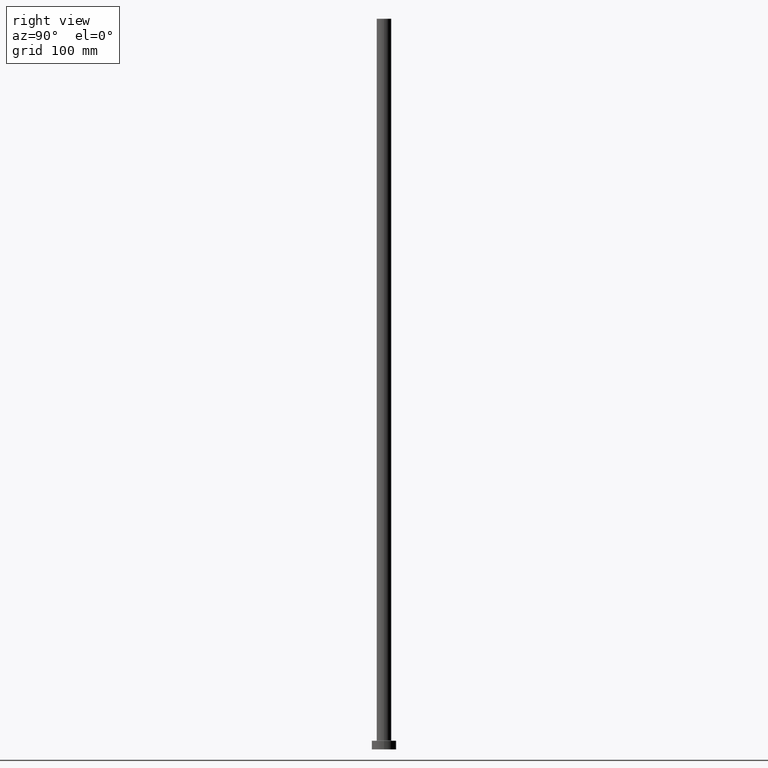
[diagram: clean part render]
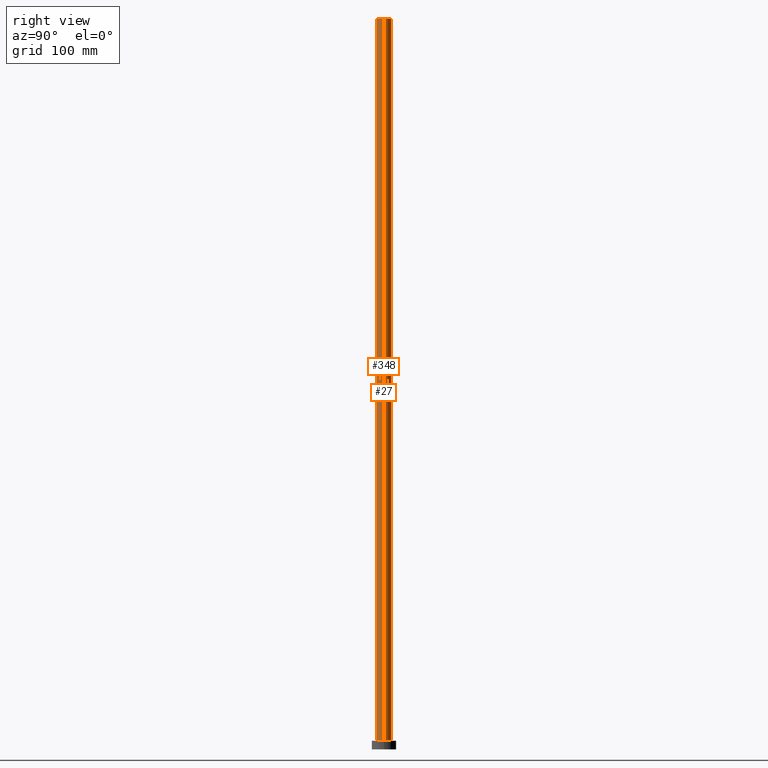
[diagram: same view with one multi-face feature highlighted, each face labeled with its STEP entity id]
A machine part, right view. The highlighted faces form ONE feature: a constant-radius fillet chain: 2 tangent blend faces with common blend radius 6 mm. The faces share edges in the B-rep.
Their STEP definitions:
[1] entity #348 (Cylinder):
#2 = LINE ( 'NONE', #327, #193 ) ;
#14 = EDGE_LOOP ( 'NONE', ( #346, #125, #176, #372 ) ) ;
#20 = CARTESIAN_POINT ( 'NONE',  ( -6.000000000000000888, 0.000000000000000000, 600.0000000000000000 ) ) ;
#31 = DIRECTION ( 'NONE',  ( 1.000000000000000000, 0.000000000000000000, 0.000000000000000000 ) ) ;
#37 = CARTESIAN_POINT ( 'NONE',  ( 6.000000000000000888, 7.347880794884120722E-16, 600.0000000000000000 ) ) ;
#54 = EDGE_CURVE ( 'NONE', #161, #165, #2, .T. ) ;
#87 = CYLINDRICAL_SURFACE ( 'NONE', #398, 6.000000000000000888 ) ;
#125 = ORIENTED_EDGE ( 'NONE', *, *, #418, .F. ) ;
#129 = DIRECTION ( 'NONE',  ( -1.000000000000000000, 0.000000000000000000, 0.000000000000000000 ) ) ;
#145 = CIRCLE ( 'NONE', #432, 6.000000000000000888 ) ;
#160 = LINE ( 'NONE', #237, #447 ) ;
#161 = VERTEX_POINT ( 'NONE', #37 ) ;
#165 = VERTEX_POINT ( 'NONE', #298 ) ;
#167 = DIRECTION ( 'NONE',  ( -0.000000000000000000, -0.000000000000000000, -1.000000000000000000 ) ) ;
#169 = DIRECTION ( 'NONE',  ( 0.000000000000000000, 0.000000000000000000, 1.000000000000000000 ) ) ;
#176 = ORIENTED_EDGE ( 'NONE', *, *, #292, .T. ) ;
#180 = CARTESIAN_POINT ( 'NONE',  ( -6.000000000000000888, 0.000000000000000000, 7.499999999999951150 ) ) ;
#193 = VECTOR ( 'NONE', #329, 1000.000000000000000 ) ;
#198 = VERTEX_POINT ( 'NONE', #20 ) ;
#202 = FACE_OUTER_BOUND ( 'NONE', #14, .T. ) ;
#205 = DIRECTION ( 'NONE',  ( 1.000000000000000000, 0.000000000000000000, 0.000000000000000000 ) ) ;
#207 = DIRECTION ( 'NONE',  ( 0.000000000000000000, 0.000000000000000000, 1.000000000000000000 ) ) ;
#214 = EDGE_CURVE ( 'NONE', #374, #165, #455, .T. ) ;
#237 = CARTESIAN_POINT ( 'NONE',  ( -6.000000000000000888, 0.000000000000000000, 600.0000000000000000 ) ) ;
#245 = CARTESIAN_POINT ( 'NONE',  ( 0.000000000000000000, 0.000000000000000000, 600.0000000000000000 ) ) ;
#276 = AXIS2_PLACEMENT_3D ( 'NONE', #312, #169, #205 ) ;
#292 = EDGE_CURVE ( 'NONE', #198, #374, #160, .T. ) ;
#298 = CARTESIAN_POINT ( 'NONE',  ( 6.000000000000000888, 7.347880794884120722E-16, 7.499999999999951150 ) ) ;
#302 = DIRECTION ( 'NONE',  ( -0.000000000000000000, -0.000000000000000000, -1.000000000000000000 ) ) ;
#312 = CARTESIAN_POINT ( 'NONE',  ( 0.000000000000000000, 0.000000000000000000, 7.499999999999951150 ) ) ;
#327 = CARTESIAN_POINT ( 'NONE',  ( 6.000000000000000888, 7.347880794884120722E-16, 600.0000000000000000 ) ) ;
#329 = DIRECTION ( 'NONE',  ( -0.000000000000000000, -0.000000000000000000, -1.000000000000000000 ) ) ;
#346 = ORIENTED_EDGE ( 'NONE', *, *, #54, .F. ) ;
#348 = ADVANCED_FACE ( 'NONE', ( #202 ), #87, .T. ) ;
#372 = ORIENTED_EDGE ( 'NONE', *, *, #214, .T. ) ;
#373 = CARTESIAN_POINT ( 'NONE',  ( 0.000000000000000000, 0.000000000000000000, 600.0000000000000000 ) ) ;
#374 = VERTEX_POINT ( 'NONE', #180 ) ;
#398 = AXIS2_PLACEMENT_3D ( 'NONE', #373, #167, #129 ) ;
#418 = EDGE_CURVE ( 'NONE', #198, #161, #145, .T. ) ;
#432 = AXIS2_PLACEMENT_3D ( 'NONE', #245, #207, #31 ) ;
#447 = VECTOR ( 'NONE', #302, 1000.000000000000000 ) ;
#455 = CIRCLE ( 'NONE', #276, 6.000000000000000888 ) ;
[2] entity #27 (Cylinder):
#2 = LINE ( 'NONE', #327, #193 ) ;
#20 = CARTESIAN_POINT ( 'NONE',  ( -6.000000000000000888, 0.000000000000000000, 600.0000000000000000 ) ) ;
#22 = DIRECTION ( 'NONE',  ( -1.000000000000000000, 0.000000000000000000, 0.000000000000000000 ) ) ;
#27 = ADVANCED_FACE ( 'NONE', ( #356 ), #209, .T. ) ;
#35 = CARTESIAN_POINT ( 'NONE',  ( 0.000000000000000000, 0.000000000000000000, 7.499999999999951150 ) ) ;
#37 = CARTESIAN_POINT ( 'NONE',  ( 6.000000000000000888, 7.347880794884120722E-16, 600.0000000000000000 ) ) ;
#54 = EDGE_CURVE ( 'NONE', #161, #165, #2, .T. ) ;
#60 = CIRCLE ( 'NONE', #301, 6.000000000000000888 ) ;
#105 = EDGE_CURVE ( 'NONE', #165, #374, #239, .T. ) ;
#109 = DIRECTION ( 'NONE',  ( -0.000000000000000000, -0.000000000000000000, -1.000000000000000000 ) ) ;
#137 = EDGE_CURVE ( 'NONE', #161, #198, #60, .T. ) ;
#149 = DIRECTION ( 'NONE',  ( 0.000000000000000000, 0.000000000000000000, 1.000000000000000000 ) ) ;
#158 = DIRECTION ( 'NONE',  ( 1.000000000000000000, 0.000000000000000000, 0.000000000000000000 ) ) ;
#160 = LINE ( 'NONE', #237, #447 ) ;
#161 = VERTEX_POINT ( 'NONE', #37 ) ;
#165 = VERTEX_POINT ( 'NONE', #298 ) ;
#174 = ORIENTED_EDGE ( 'NONE', *, *, #292, .F. ) ;
#180 = CARTESIAN_POINT ( 'NONE',  ( -6.000000000000000888, 0.000000000000000000, 7.499999999999951150 ) ) ;
#193 = VECTOR ( 'NONE', #329, 1000.000000000000000 ) ;
#198 = VERTEX_POINT ( 'NONE', #20 ) ;
#204 = EDGE_LOOP ( 'NONE', ( #293, #380, #339, #174 ) ) ;
#209 = CYLINDRICAL_SURFACE ( 'NONE', #247, 6.000000000000000888 ) ;
#237 = CARTESIAN_POINT ( 'NONE',  ( -6.000000000000000888, 0.000000000000000000, 600.0000000000000000 ) ) ;
#239 = CIRCLE ( 'NONE', #446, 6.000000000000000888 ) ;
#247 = AXIS2_PLACEMENT_3D ( 'NONE', #324, #109, #22 ) ;
#292 = EDGE_CURVE ( 'NONE', #198, #374, #160, .T. ) ;
#293 = ORIENTED_EDGE ( 'NONE', *, *, #137, .F. ) ;
#298 = CARTESIAN_POINT ( 'NONE',  ( 6.000000000000000888, 7.347880794884120722E-16, 7.499999999999951150 ) ) ;
#301 = AXIS2_PLACEMENT_3D ( 'NONE', #359, #149, #428 ) ;
#302 = DIRECTION ( 'NONE',  ( -0.000000000000000000, -0.000000000000000000, -1.000000000000000000 ) ) ;
#324 = CARTESIAN_POINT ( 'NONE',  ( 0.000000000000000000, 0.000000000000000000, 600.0000000000000000 ) ) ;
#327 = CARTESIAN_POINT ( 'NONE',  ( 6.000000000000000888, 7.347880794884120722E-16, 600.0000000000000000 ) ) ;
#329 = DIRECTION ( 'NONE',  ( -0.000000000000000000, -0.000000000000000000, -1.000000000000000000 ) ) ;
#339 = ORIENTED_EDGE ( 'NONE', *, *, #105, .T. ) ;
#356 = FACE_OUTER_BOUND ( 'NONE', #204, .T. ) ;
#359 = CARTESIAN_POINT ( 'NONE',  ( 0.000000000000000000, 0.000000000000000000, 600.0000000000000000 ) ) ;
#374 = VERTEX_POINT ( 'NONE', #180 ) ;
#380 = ORIENTED_EDGE ( 'NONE', *, *, #54, .T. ) ;
#428 = DIRECTION ( 'NONE',  ( 1.000000000000000000, 0.000000000000000000, 0.000000000000000000 ) ) ;
#433 = DIRECTION ( 'NONE',  ( 0.000000000000000000, 0.000000000000000000, 1.000000000000000000 ) ) ;
#446 = AXIS2_PLACEMENT_3D ( 'NONE', #35, #433, #158 ) ;
#447 = VECTOR ( 'NONE', #302, 1000.000000000000000 ) ;